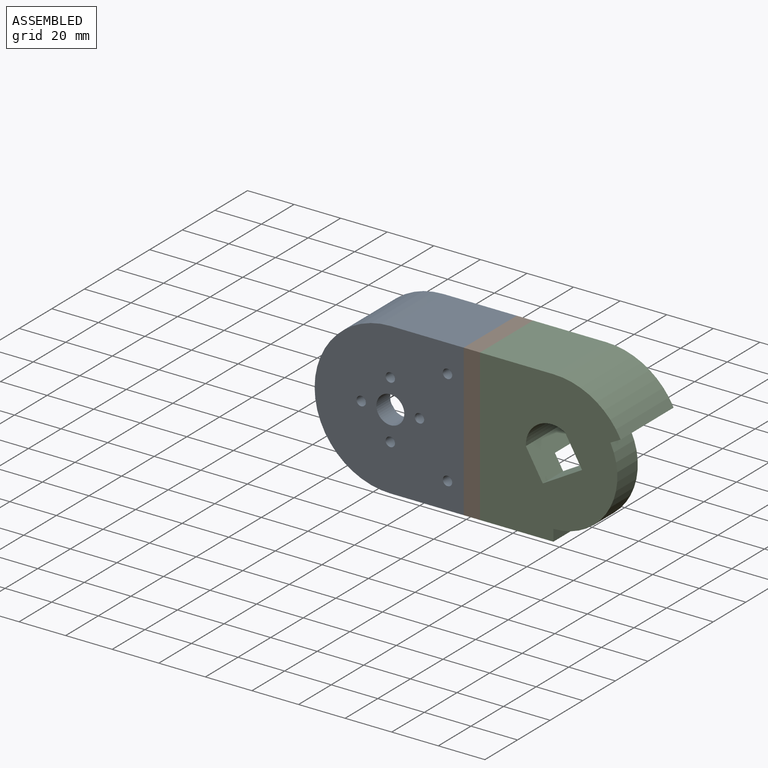
[diagram: assembled view]
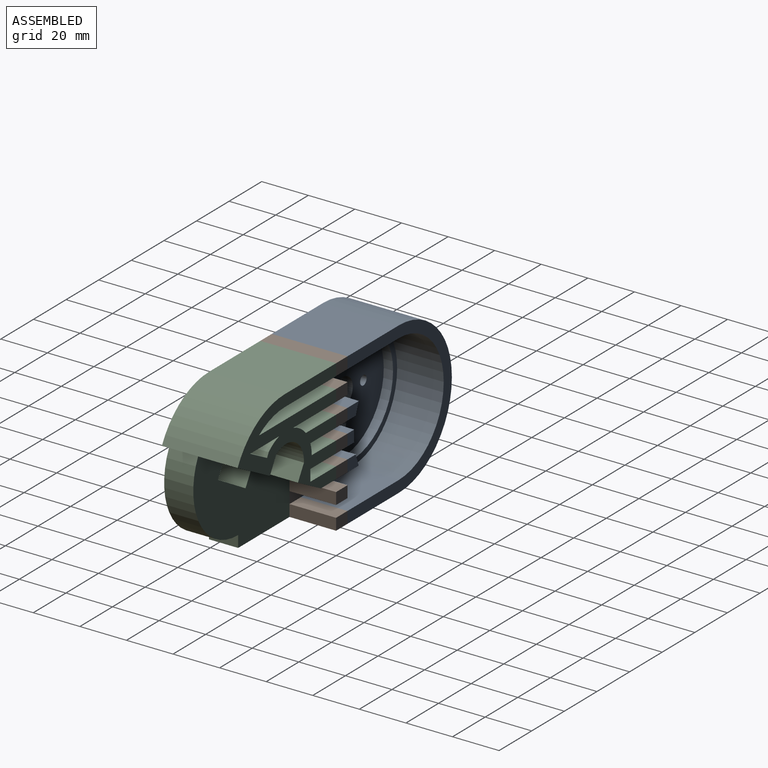
[diagram: assembled view, second angle]
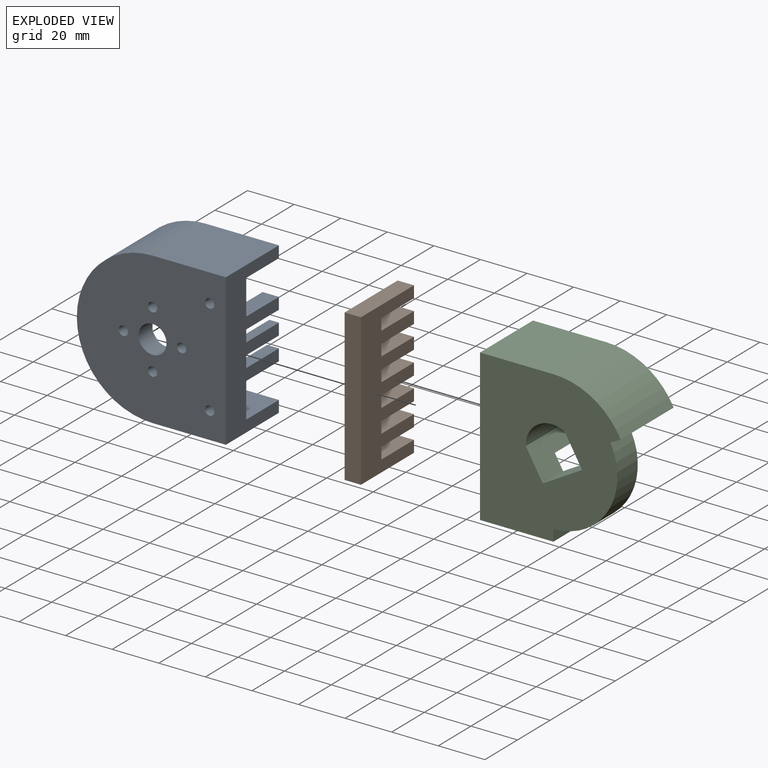
[diagram: exploded view]
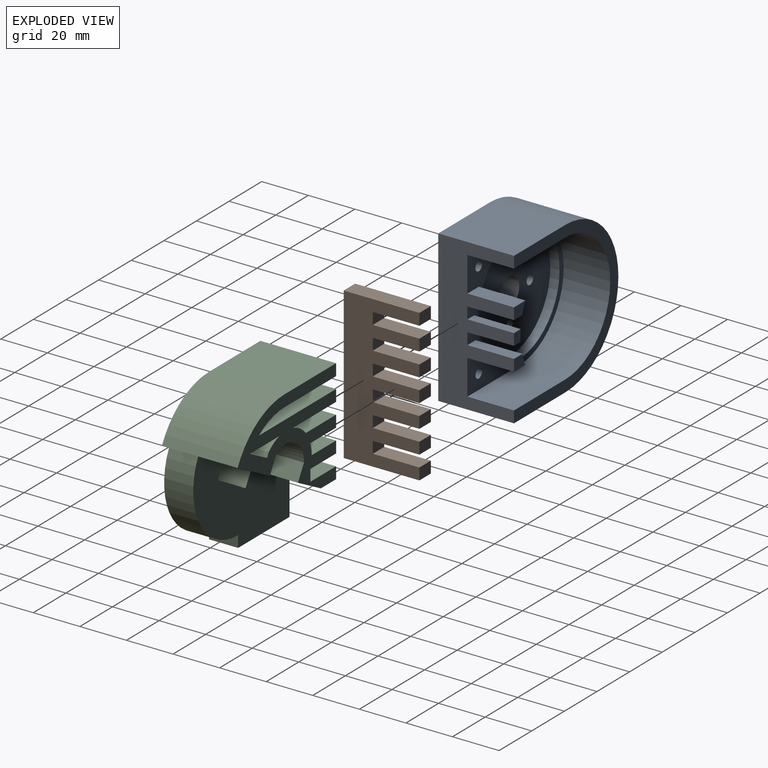
[diagram: exploded view, second angle]
ASSEMBLY  parts=3 mates=2
PART A: 31 faces, bbox 64x32.5x65 mm
  f0: plane 31.5x20mm, normal (0,0,-1), area 630mm2, adj f2,f3,f6,f27
  f1: plane 32.5x31.5mm, normal (0,0,1), area 1023.8mm2, adj f2,f3,f7,f28
  f2: plane 65x32.5mm, normal (1,0,0), area 1312.5mm2, adj f0,f1,f3,f4,f5,f6,f7,f15
  f3: plane 65x64mm, normal (0,1,0), area 786.2mm2, adj f0,f1,f2,f4,f5,f27,f28
  f4: plane 31.5x20mm, normal (0,0,1), area 630mm2, adj f2,f3,f6,f27
  f5: plane 32.5x31.5mm, normal (0,0,-1), area 1023.8mm2, adj f2,f3,f7,f28
  f6: plane 59x55mm, normal (0,1,0), area 852.3mm2, adj f0,f2,f4,f13,f15,f16,f17,f19
  f7: plane 65x64mm, normal (0,-1,0), area 3518.2mm2, adj f1,f2,f5,f8,f9,f10,f11,f12
  f8: cylinder r=6mm len=12mm, axis (0,-1,0), area 320.4mm2, adj f7,f14
  f9: cylinder r=2mm len=8.5mm, axis (0,1,0), area 106.8mm2, adj f7,f14
  f10: cylinder r=2mm len=8.5mm, axis (0,1,0), area 106.8mm2, adj f7,f14
  f11: cylinder r=2mm len=8.5mm, axis (0,1,0), area 106.8mm2, adj f7,f14
  f12: cylinder r=2mm len=8.5mm, axis (0,1,0), area 106.8mm2, adj f7,f14
  f13: cylinder r=25mm len=50mm, axis (0,1,0), area 628.3mm2, adj f6,f14
  f14: plane 50x50mm, normal (0,1,0), area 1800.1mm2, adj f8,f9,f10,f11,f12,f13
  f15: plane 20x5.04mm, normal (0,0,-1), area 100.8mm2, adj f2,f6,f16,f18
  f16: cylinder r=27.5mm len=20mm, axis (0,-1,0), area 107.6mm2, adj f6,f15,f17,f18
  f17: plane 20x7.01mm, normal (0,0,1), area 140.1mm2, adj f2,f6,f16,f18
  f18: plane 7.01x5mm, normal (0,1,0), area 29.6mm2, adj f2,f15,f16,f17
  f19: plane 20x4.11mm, normal (0,0,-1), area 82.3mm2, adj f2,f6,f20,f22
  f20: cylinder r=27.5mm len=20mm, axis (0,-1,0), area 100.1mm2, adj f6,f19,f21,f22
  f21: plane 20x4.11mm, normal (0,0,1), area 82.3mm2, adj f2,f6,f20,f22
  f22: plane 5x4.11mm, normal (0,1,0), area 20.2mm2, adj f2,f19,f20,f21
  f23: plane 20x7.01mm, normal (0,0,-1), area 140.1mm2, adj f2,f6,f24,f26
  f24: cylinder r=27.5mm len=20mm, axis (0,-1,0), area 107.6mm2, adj f6,f23,f25,f26
  f25: plane 20x5.04mm, normal (0,0,1), area 100.8mm2, adj f2,f6,f24,f26
  f26: plane 7.01x5mm, normal (0,1,0), area 29.6mm2, adj f2,f23,f24,f25
  f27: cylinder r=27.5mm len=55mm, axis (0,-1,0), area 1727.9mm2, adj f0,f3,f4,f6
  f28: cylinder r=32.5mm len=65mm, axis (0,-1,0), area 3318.3mm2, adj f1,f3,f5,f7
  f29: cylinder r=2mm len=12.5mm, axis (0,1,0), area 157.1mm2, adj f6,f7
  f30: cylinder r=2mm len=12.5mm, axis (0,1,0), area 157.1mm2, adj f6,f7
PART B: 30 faces, bbox 7x32.5x65 mm
  f0: plane 65x7mm, normal (0,-1,0), area 455mm2, adj f1,f27,f28,f29
  f1: plane 32.5x7mm, normal (0,0,-1), area 227.5mm2, adj f0,f2,f28,f29
  f2: plane 7x5mm, normal (0,1,0), area 35mm2, adj f1,f3,f28,f29
  f3: plane 20x7mm, normal (0,0,1), area 140mm2, adj f2,f4,f28,f29
  f4: plane 7x5mm, normal (0,1,0), area 35mm2, adj f3,f5,f28,f29
  f5: plane 20x7mm, normal (0,0,-1), area 140mm2, adj f4,f6,f28,f29
  f6: plane 7x5mm, normal (0,1,0), area 35mm2, adj f5,f7,f28,f29
  f7: plane 20x7mm, normal (0,0,1), area 140mm2, adj f6,f8,f28,f29
  f8: plane 7x5mm, normal (0,1,0), area 35mm2, adj f7,f9,f28,f29
  f9: plane 20x7mm, normal (0,0,-1), area 140mm2, adj f8,f10,f28,f29
  f10: plane 7x5mm, normal (0,1,0), area 35mm2, adj f9,f11,f28,f29
  f11: plane 20x7mm, normal (0,0,1), area 140mm2, adj f10,f12,f28,f29
  f12: plane 7x5mm, normal (0,1,0), area 35mm2, adj f11,f13,f28,f29
  f13: plane 20x7mm, normal (0,0,-1), area 140mm2, adj f12,f14,f28,f29
  f14: plane 7x5mm, normal (0,1,0), area 35mm2, adj f13,f15,f28,f29
  f15: plane 20x7mm, normal (0,0,1), area 140mm2, adj f14,f16,f28,f29
  f16: plane 7x5mm, normal (0,1,0), area 35mm2, adj f15,f17,f28,f29
  f17: plane 20x7mm, normal (0,0,-1), area 140mm2, adj f16,f18,f28,f29
  f18: plane 7x5mm, normal (0,1,0), area 35mm2, adj f17,f19,f28,f29
  f19: plane 20x7mm, normal (0,0,1), area 140mm2, adj f18,f20,f28,f29
  f20: plane 7x5mm, normal (0,1,0), area 35mm2, adj f19,f21,f28,f29
  f21: plane 20x7mm, normal (0,0,-1), area 140mm2, adj f20,f22,f28,f29
  f22: plane 7x5mm, normal (0,1,0), area 35mm2, adj f21,f23,f28,f29
  f23: plane 20x7mm, normal (0,0,1), area 140mm2, adj f22,f24,f28,f29
  f24: plane 7x5mm, normal (0,1,0), area 35mm2, adj f23,f25,f28,f29
  f25: plane 20x7mm, normal (0,0,-1), area 140mm2, adj f24,f26,f28,f29
  f26: plane 7x5mm, normal (0,1,0), area 35mm2, adj f25,f27,f28,f29
  f27: plane 32.5x7mm, normal (0,0,1), area 227.5mm2, adj f0,f26,f28,f29
  f28: plane 65x32.5mm, normal (1,0,0), area 1512.5mm2, adj f0,f1,f2,f3,f4,f5,f6,f7
  f29: plane 65x32.5mm, normal (-1,0,0), area 1512.5mm2, adj f0,f1,f2,f3,f4,f5,f6,f7
PART C: 38 faces, bbox 60.4x32.5x65 mm
  f0: plane 59x45mm, normal (0,1,0), area 1394mm2, adj f1,f7,f10,f11,f13,f16,f17,f20
  f1: cylinder r=27.5mm len=40mm, axis (0,-1,0), area 702.2mm2, adj f0,f14,f16,f32
  f2: plane 26.26x5mm, normal (0,1,0), area 107.8mm2, adj f7,f28,f29,f30
  f3: plane 15.75x5mm, normal (0,1,0), area 76mm2, adj f7,f25,f26,f27
  f4: plane 15.75x5mm, normal (0,1,0), area 78.7mm2, adj f7,f22,f23,f24
  f5: plane 17.94x5.62mm, normal (0,1,0), area 43.9mm2, adj f18,f19,f35,f36
  f6: plane 31.5x20mm, normal (0,0,-1), area 630mm2, adj f7,f9,f15,f34
  f7: plane 65x32.5mm, normal (-1,0,0), area 1312.5mm2, adj f0,f2,f3,f4,f6,f8,f9,f14
  f8: plane 32.5x31.5mm, normal (0,0,1), area 1023.8mm2, adj f7,f9,f14,f33
  f9: plane 60.4x45mm, normal (0,1,0), area 1123.4mm2, adj f6,f7,f8,f11,f12,f13,f18,f19
  f10: plane 16.89x12.5mm, normal (-0.5,0,0.87), area 243.7mm2, adj f0,f11,f13,f14
  f11: plane 32.5x12.56mm, normal (0.87,0,0.5), area 329.3mm2, adj f0,f9,f10,f12,f14,f20
  f12: cylinder r=11mm len=32.5mm, axis (0,-1,0), area 778.9mm2, adj f9,f11,f13,f14
  f13: plane 32.5x12.56mm, normal (-0.87,0,-0.5), area 341.7mm2, adj f0,f9,f10,f12,f14,f37
  f14: plane 65x60.4mm, normal (0,-1,0), area 3035.1mm2, adj f1,f7,f8,f10,f11,f12,f13,f16
  f15: plane 47.31x5mm, normal (0,1,0), area 211.2mm2, adj f6,f7,f31,f34
  f16: plane 12.5x5mm, normal (1,0,0), area 62.5mm2, adj f0,f1,f14,f17
  f17: plane 31.5x12.5mm, normal (0,0,-1), area 393.8mm2, adj f0,f7,f14,f16
  f18: plane 20x17.94mm, normal (0,0,-1), area 358.8mm2, adj f5,f9,f19,f36
  f19: cylinder r=15.59mm len=20mm, axis (0,-1,0), area 152.2mm2, adj f5,f9,f18,f35
  f20: plane 20x14.06mm, normal (0.47,0,-0.88), area 318.9mm2, adj f0,f9,f11,f21
  f21: plane 20x9.33mm, normal (0,0,-1), area 186.6mm2, adj f0,f7,f9,f20
  f22: plane 20x15.75mm, normal (0,0,1), area 315mm2, adj f4,f7,f9,f23
  f23: plane 20x5mm, normal (-1,0,0), area 100mm2, adj f4,f9,f22,f24
  f24: plane 20x15.75mm, normal (0,0,-1), area 315mm2, adj f4,f7,f9,f23
  f25: plane 20x14.93mm, normal (0,0,1), area 298.5mm2, adj f3,f7,f9,f26
  f26: cylinder r=15.59mm len=20mm, axis (0,-1,0), area 101.8mm2, adj f3,f9,f25,f27
  f27: plane 20x15.75mm, normal (0,0,-1), area 315mm2, adj f3,f7,f9,f26
  f28: plane 20x18.56mm, normal (0,0,1), area 371.1mm2, adj f2,f7,f9,f29
  f29: cylinder r=15.59mm len=20mm, axis (0,-1,0), area 186.5mm2, adj f2,f9,f28,f30
  f30: plane 26.26x20mm, normal (0,0,-1), area 525.3mm2, adj f2,f7,f9,f29
  f31: plane 47.31x20mm, normal (0,0,1), area 946.2mm2, adj f7,f9,f15,f34
  f32: plane 32.5x4.41mm, normal (0.47,0,-0.88), area 162.5mm2, adj f1,f9,f14,f33,f37
  f33: cylinder r=32.5mm len=32.5mm, axis (0,-1,0), area 1157.5mm2, adj f8,f9,f14,f32
  f34: cylinder r=27.5mm len=20mm, axis (0,-1,0), area 336.9mm2, adj f6,f9,f15,f31
  f35: plane 20x1.88mm, normal (0.88,0,0.48), area 42.6mm2, adj f5,f9,f19,f36
  f36: plane 20x10.39mm, normal (-0.48,0,0.88), area 236.3mm2, adj f5,f9,f18,f35
  f37: plane 20x15.41mm, normal (0.47,0,-0.88), area 349.6mm2, adj f0,f9,f13,f32
PLACE A t=(11.02,-9.11,88.9)mm
PLACE B t=(0,0,88.9)mm
PLACE C t=(-4.02,-9.11,88.9)mm
MATE parallel A.f2 <-> B.f29  axis (1,0,0) through (0,-21.61,56.4)mm
MATE fastened C.f7 <-> B.f28  axis (-1,0,0) through (7,-21.61,121.4)mm
